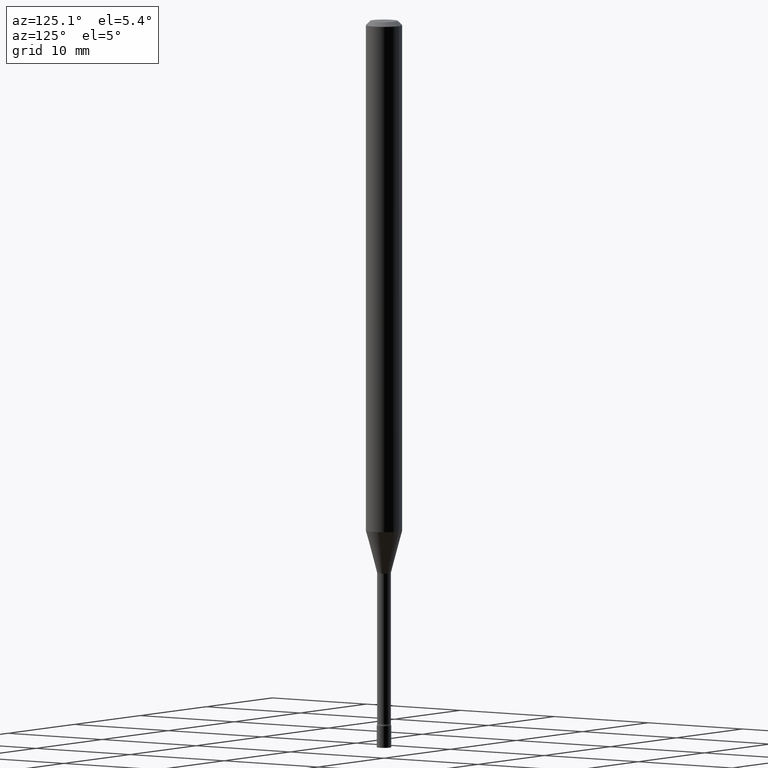
[diagram: clean part render]
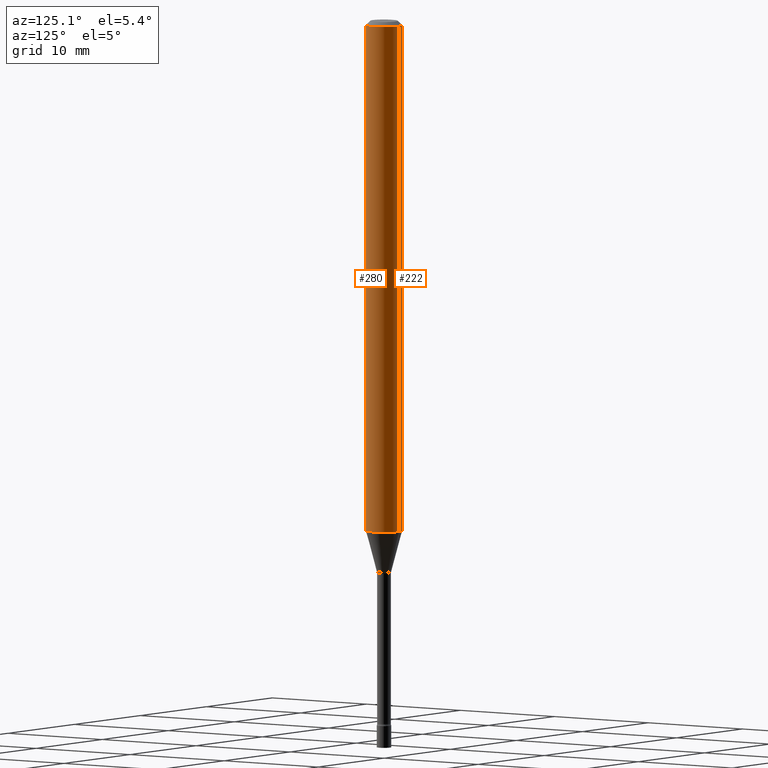
[diagram: same view with one multi-face feature highlighted, each face labeled with its STEP entity id]
A machine part, auxiliary view. The highlighted faces form ONE feature: a constant-radius fillet chain: 2 tangent blend faces with common blend radius 1.5875 mm. The faces share edges in the B-rep.
Their STEP definitions:
[1] entity #280 (Cylinder):
#9 = EDGE_CURVE ( 'NONE', #40, #66, #244, .T. ) ;
#15 = EDGE_CURVE ( 'NONE', #270, #40, #210, .T. ) ;
#16 = LINE ( 'NONE', #94, #307 ) ;
#40 = VERTEX_POINT ( 'NONE', #387 ) ;
#43 = CARTESIAN_POINT ( 'NONE',  ( 4.290438924638068672E-29, -6.125649358772860371E-15, -1.754450018504814635 ) ) ;
#44 = DIRECTION ( 'NONE',  ( -2.445460901926682193E-29, 3.491492658191134624E-15, 1.000000000000000000 ) ) ;
#46 = CIRCLE ( 'NONE', #117, 0.06250000000000000000 ) ;
#61 = DIRECTION ( 'NONE',  ( -2.445460901926682193E-29, 3.491492658191134624E-15, 1.000000000000000000 ) ) ;
#63 = FACE_OUTER_BOUND ( 'NONE', #164, .T. ) ;
#66 = VERTEX_POINT ( 'NONE', #376 ) ;
#75 = EDGE_CURVE ( 'NONE', #270, #80, #16, .T. ) ;
#80 = VERTEX_POINT ( 'NONE', #423 ) ;
#94 = CARTESIAN_POINT ( 'NONE',  ( -4.364351673553916201E-16, -0.06250000000000000000, 2.182182911369459140E-16 ) ) ;
#111 = DIRECTION ( 'NONE',  ( -2.445460901926682193E-29, 3.491492658191134624E-15, 1.000000000000000000 ) ) ;
#117 = AXIS2_PLACEMENT_3D ( 'NONE', #205, #44, #285 ) ;
#132 = DIRECTION ( 'NONE',  ( -2.445460901926682193E-29, 3.491492658191134624E-15, 1.000000000000000000 ) ) ;
#158 = ORIENTED_EDGE ( 'NONE', *, *, #425, .F. ) ;
#164 = EDGE_LOOP ( 'NONE', ( #475, #230, #158, #196 ) ) ;
#196 = ORIENTED_EDGE ( 'NONE', *, *, #75, .F. ) ;
#205 = CARTESIAN_POINT ( 'NONE',  ( 3.668191352890030418E-31, -5.237238987286712930E-17, -0.01500000000000003067 ) ) ;
#210 = CIRCLE ( 'NONE', #267, 0.06250000000000000000 ) ;
#229 = CARTESIAN_POINT ( 'NONE',  ( 0.000000000000000000, 0.000000000000000000, 0.000000000000000000 ) ) ;
#230 = ORIENTED_EDGE ( 'NONE', *, *, #9, .T. ) ;
#244 = LINE ( 'NONE', #519, #353 ) ;
#265 = CYLINDRICAL_SURFACE ( 'NONE', #328, 0.06250000000000000000 ) ;
#267 = AXIS2_PLACEMENT_3D ( 'NONE', #43, #367, #488 ) ;
#270 = VERTEX_POINT ( 'NONE', #473 ) ;
#273 = DIRECTION ( 'NONE',  ( -6.982962677686265922E-15, -1.000000000000000000, 3.491492658191134624E-15 ) ) ;
#280 = ADVANCED_FACE ( 'NONE', ( #63 ), #265, .T. ) ;
#285 = DIRECTION ( 'NONE',  ( -6.982962677686265922E-15, -1.000000000000000000, 3.483106191921935554E-15 ) ) ;
#307 = VECTOR ( 'NONE', #61, 39.37007874015748143 ) ;
#328 = AXIS2_PLACEMENT_3D ( 'NONE', #229, #111, #273 ) ;
#353 = VECTOR ( 'NONE', #132, 39.37007874015748143 ) ;
#367 = DIRECTION ( 'NONE',  ( -2.445460901926682193E-29, 3.491492658191134624E-15, 1.000000000000000000 ) ) ;
#376 = CARTESIAN_POINT ( 'NONE',  ( 4.440892098501058063E-16, 0.06249999999999995143, -0.01500000000000024751 ) ) ;
#387 = CARTESIAN_POINT ( 'NONE',  ( 4.440892098501052147E-16, 0.06249999999999384520, -1.754450018504814857 ) ) ;
#423 = CARTESIAN_POINT ( 'NONE',  ( -4.364351673553912750E-16, -0.06250000000000005551, -0.01499999999999981209 ) ) ;
#425 = EDGE_CURVE ( 'NONE', #80, #66, #46, .T. ) ;
#473 = CARTESIAN_POINT ( 'NONE',  ( -4.364351673553489230E-16, -0.06250000000000614786, -1.754450018504814190 ) ) ;
#475 = ORIENTED_EDGE ( 'NONE', *, *, #15, .T. ) ;
#488 = DIRECTION ( 'NONE',  ( -6.982962677686265922E-15, -1.000000000000000000, 4.370956789862821150E-15 ) ) ;
#519 = CARTESIAN_POINT ( 'NONE',  ( 4.440892098500625669E-16, 0.06250000000000000000, -2.182182911369459140E-16 ) ) ;
[2] entity #222 (Cylinder):
#9 = EDGE_CURVE ( 'NONE', #40, #66, #244, .T. ) ;
#16 = LINE ( 'NONE', #94, #307 ) ;
#26 = EDGE_CURVE ( 'NONE', #66, #80, #127, .T. ) ;
#40 = VERTEX_POINT ( 'NONE', #387 ) ;
#45 = DIRECTION ( 'NONE',  ( -6.982962677686265922E-15, -1.000000000000000000, 3.483106191921935554E-15 ) ) ;
#48 = DIRECTION ( 'NONE',  ( -6.982962677686265922E-15, -1.000000000000000000, 4.370956789862821150E-15 ) ) ;
#61 = DIRECTION ( 'NONE',  ( -2.445460901926682193E-29, 3.491492658191134624E-15, 1.000000000000000000 ) ) ;
#65 = AXIS2_PLACEMENT_3D ( 'NONE', #335, #253, #48 ) ;
#66 = VERTEX_POINT ( 'NONE', #376 ) ;
#68 = FACE_OUTER_BOUND ( 'NONE', #489, .T. ) ;
#75 = EDGE_CURVE ( 'NONE', #270, #80, #16, .T. ) ;
#80 = VERTEX_POINT ( 'NONE', #423 ) ;
#81 = AXIS2_PLACEMENT_3D ( 'NONE', #251, #414, #45 ) ;
#94 = CARTESIAN_POINT ( 'NONE',  ( -4.364351673553916201E-16, -0.06250000000000000000, 2.182182911369459140E-16 ) ) ;
#127 = CIRCLE ( 'NONE', #81, 0.06250000000000000000 ) ;
#132 = DIRECTION ( 'NONE',  ( -2.445460901926682193E-29, 3.491492658191134624E-15, 1.000000000000000000 ) ) ;
#136 = AXIS2_PLACEMENT_3D ( 'NONE', #502, #348, #356 ) ;
#145 = EDGE_CURVE ( 'NONE', #40, #270, #478, .T. ) ;
#193 = ORIENTED_EDGE ( 'NONE', *, *, #26, .F. ) ;
#222 = ADVANCED_FACE ( 'NONE', ( #68 ), #271, .T. ) ;
#244 = LINE ( 'NONE', #519, #353 ) ;
#251 = CARTESIAN_POINT ( 'NONE',  ( 3.668191352890030418E-31, -5.237238987286712930E-17, -0.01500000000000003067 ) ) ;
#253 = DIRECTION ( 'NONE',  ( -2.445460901926682193E-29, 3.491492658191134624E-15, 1.000000000000000000 ) ) ;
#270 = VERTEX_POINT ( 'NONE', #473 ) ;
#271 = CYLINDRICAL_SURFACE ( 'NONE', #136, 0.06250000000000000000 ) ;
#307 = VECTOR ( 'NONE', #61, 39.37007874015748143 ) ;
#320 = ORIENTED_EDGE ( 'NONE', *, *, #9, .F. ) ;
#329 = ORIENTED_EDGE ( 'NONE', *, *, #75, .T. ) ;
#335 = CARTESIAN_POINT ( 'NONE',  ( 4.290438924638068672E-29, -6.125649358772860371E-15, -1.754450018504814635 ) ) ;
#348 = DIRECTION ( 'NONE',  ( -2.445460901926682193E-29, 3.491492658191134624E-15, 1.000000000000000000 ) ) ;
#353 = VECTOR ( 'NONE', #132, 39.37007874015748143 ) ;
#356 = DIRECTION ( 'NONE',  ( -6.982962677686265922E-15, -1.000000000000000000, 3.491492658191134624E-15 ) ) ;
#376 = CARTESIAN_POINT ( 'NONE',  ( 4.440892098501058063E-16, 0.06249999999999995143, -0.01500000000000024751 ) ) ;
#387 = CARTESIAN_POINT ( 'NONE',  ( 4.440892098501052147E-16, 0.06249999999999384520, -1.754450018504814857 ) ) ;
#414 = DIRECTION ( 'NONE',  ( -2.445460901926682193E-29, 3.491492658191134624E-15, 1.000000000000000000 ) ) ;
#423 = CARTESIAN_POINT ( 'NONE',  ( -4.364351673553912750E-16, -0.06250000000000005551, -0.01499999999999981209 ) ) ;
#439 = ORIENTED_EDGE ( 'NONE', *, *, #145, .T. ) ;
#473 = CARTESIAN_POINT ( 'NONE',  ( -4.364351673553489230E-16, -0.06250000000000614786, -1.754450018504814190 ) ) ;
#478 = CIRCLE ( 'NONE', #65, 0.06250000000000000000 ) ;
#489 = EDGE_LOOP ( 'NONE', ( #320, #439, #329, #193 ) ) ;
#502 = CARTESIAN_POINT ( 'NONE',  ( 0.000000000000000000, 0.000000000000000000, 0.000000000000000000 ) ) ;
#519 = CARTESIAN_POINT ( 'NONE',  ( 4.440892098500625669E-16, 0.06250000000000000000, -2.182182911369459140E-16 ) ) ;